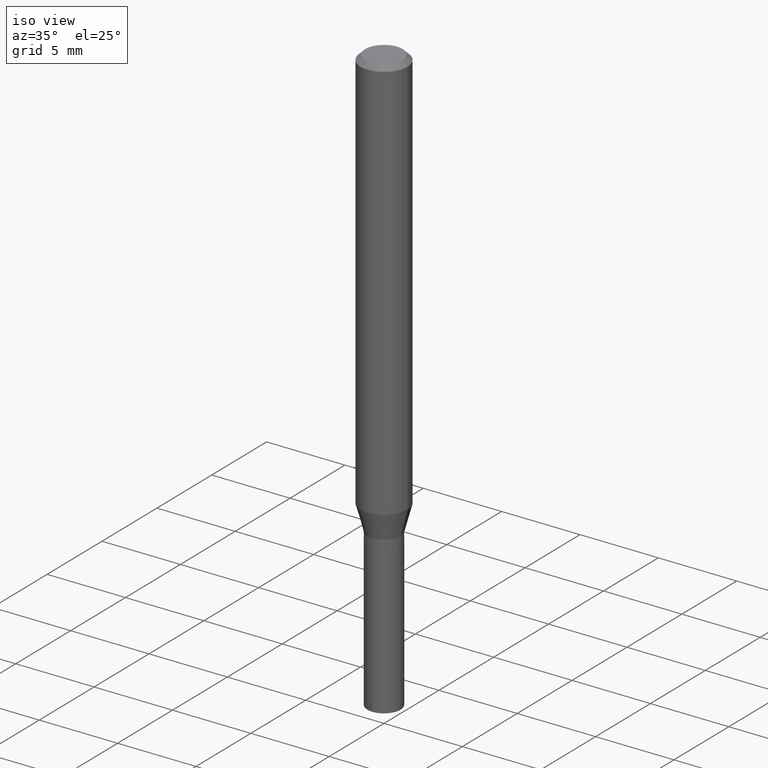
[diagram: clean part render]
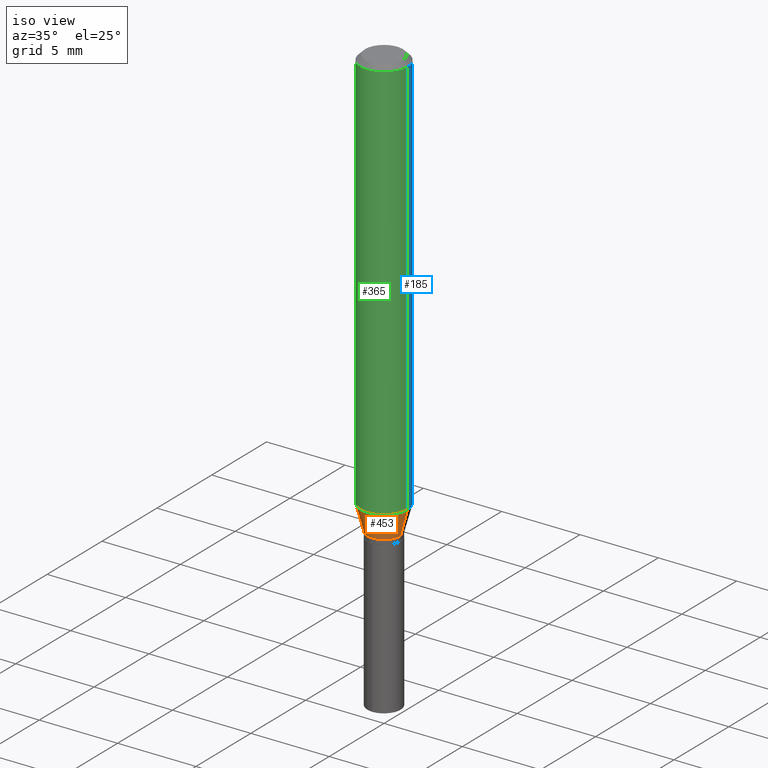
[diagram: same view with three faces highlighted in distinct colors, each labeled with its STEP entity id]
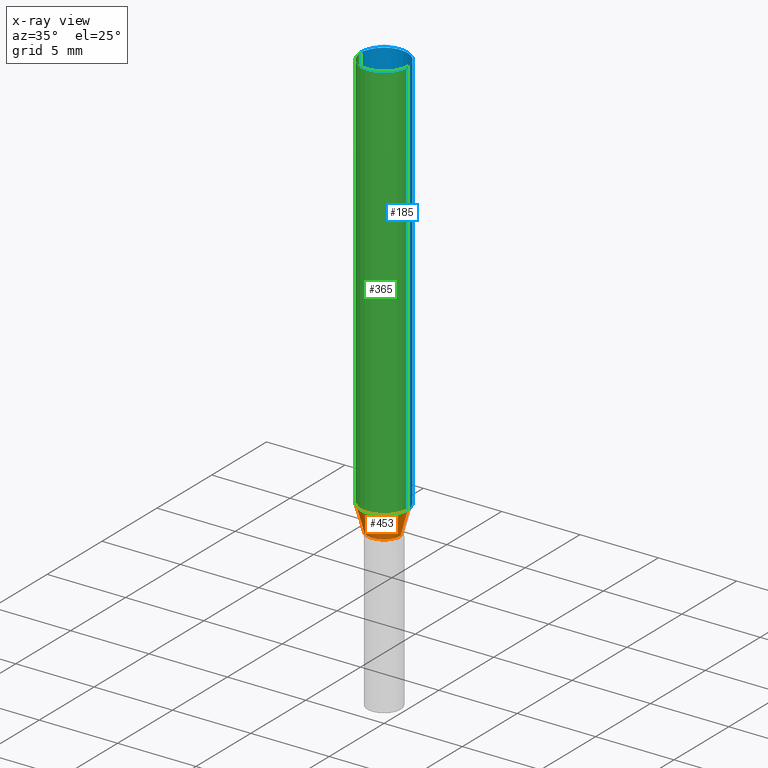
[diagram: x-ray of the same camera — body ghosted, the three highlighted faces saturated]
A machine part, iso view with three faces highlighted in distinct colors.
The next image is the same camera in x-ray (body ghosted, the three faces saturated) — at least one of them is partly hidden behind the body in this view.
Their STEP definitions:

[orange] entity #453 — the highlighted conical surface has half-angle 15 deg.
#14 = EDGE_LOOP ( 'NONE', ( #66, #106, #164, #389 ) ) ;
#15 = CARTESIAN_POINT ( 'NONE',  ( 0.04175000000000000239, -4.069321500421684169E-15, -1.081999999999999851 ) ) ;
#25 = DIRECTION ( 'NONE',  ( 1.000000000000000000, -6.982962677686269077E-15, 0.000000000000000000 ) ) ;
#40 = DIRECTION ( 'NONE',  ( 1.000000000000000000, -6.982962677686265133E-15, 0.000000000000000000 ) ) ;
#50 = CARTESIAN_POINT ( 'NONE',  ( -0.04175000000000000239, -3.481131216448440529E-15, -1.081999999999999851 ) ) ;
#51 = DIRECTION ( 'NONE',  ( 0.2588190451025213501, 1.565188264969621968E-15, 0.9659258262890682012 ) ) ;
#57 = CARTESIAN_POINT ( 'NONE',  ( 0.04175000000000000239, -4.069321500421684169E-15, -1.081999999999999851 ) ) ;
#66 = ORIENTED_EDGE ( 'NONE', *, *, #343, .F. ) ;
#79 = LINE ( 'NONE', #15, #334 ) ;
#92 = DIRECTION ( 'NONE',  ( -2.445468806185136597E-29, 3.491481338843145583E-15, 1.000000000000000000 ) ) ;
#106 = ORIENTED_EDGE ( 'NONE', *, *, #329, .T. ) ;
#112 = EDGE_CURVE ( 'NONE', #281, #201, #79, .T. ) ;
#134 = DIRECTION ( 'NONE',  ( -0.2588190451025213501, 5.211531920934551042E-15, 0.9659258262890682012 ) ) ;
#152 = EDGE_CURVE ( 'NONE', #430, #201, #416, .T. ) ;
#164 = ORIENTED_EDGE ( 'NONE', *, *, #112, .T. ) ;
#166 = AXIS2_PLACEMENT_3D ( 'NONE', #209, #286, #25 ) ;
#169 = LINE ( 'NONE', #50, #385 ) ;
#193 = CARTESIAN_POINT ( 'NONE',  ( -0.04175000000000000239, -3.502080104481499755E-15, -1.081999999999999851 ) ) ;
#201 = VERTEX_POINT ( 'NONE', #360 ) ;
#209 = CARTESIAN_POINT ( 'NONE',  ( 2.645997248292317363E-29, -3.777782808628282818E-15, -1.081999999999999851 ) ) ;
#247 = DIRECTION ( 'NONE',  ( 1.000000000000000000, -6.982962677686269077E-15, 0.000000000000000000 ) ) ;
#281 = VERTEX_POINT ( 'NONE', #57 ) ;
#286 = DIRECTION ( 'NONE',  ( -2.445468806185136597E-29, 3.491481338843145583E-15, 1.000000000000000000 ) ) ;
#311 = CARTESIAN_POINT ( 'NONE',  ( 2.645997248292317363E-29, -3.777782808628282818E-15, -1.081999999999999851 ) ) ;
#320 = AXIS2_PLACEMENT_3D ( 'NONE', #470, #347, #40 ) ;
#325 = VERTEX_POINT ( 'NONE', #193 ) ;
#329 = EDGE_CURVE ( 'NONE', #325, #281, #447, .T. ) ;
#334 = VECTOR ( 'NONE', #51, 39.37007874015747433 ) ;
#340 = CARTESIAN_POINT ( 'NONE',  ( -0.05905000000000013016, -3.132781649682767964E-15, -1.017435521029057988 ) ) ;
#343 = EDGE_CURVE ( 'NONE', #325, #430, #169, .T. ) ;
#347 = DIRECTION ( 'NONE',  ( -2.445468806185136597E-29, 3.491481338843145583E-15, 1.000000000000000000 ) ) ;
#360 = CARTESIAN_POINT ( 'NONE',  ( 0.05905000000000013016, -3.964701081266483560E-15, -1.017435521029057988 ) ) ;
#364 = FACE_OUTER_BOUND ( 'NONE', #14, .T. ) ;
#374 = CONICAL_SURFACE ( 'NONE', #166, 0.04175000000000000239, 0.2617993877991500740 ) ;
#385 = VECTOR ( 'NONE', #134, 39.37007874015747433 ) ;
#389 = ORIENTED_EDGE ( 'NONE', *, *, #152, .F. ) ;
#416 = CIRCLE ( 'NONE', #320, 0.05905000000000013016 ) ;
#430 = VERTEX_POINT ( 'NONE', #340 ) ;
#438 = AXIS2_PLACEMENT_3D ( 'NONE', #311, #92, #247 ) ;
#447 = CIRCLE ( 'NONE', #438, 0.04175000000000000239 ) ;
#453 = ADVANCED_FACE ( 'NONE', ( #364 ), #374, .T. ) ;
#470 = CARTESIAN_POINT ( 'NONE',  ( 2.488106828981282668E-29, -3.552357135149109035E-15, -1.017435521029057988 ) ) ;

[blue] entity #185 — the highlighted cylindrical surface (edge-blend (fillet) strip) has radius 1.4999 mm, axis along (-0, 0, 1).
#5 = DIRECTION ( 'NONE',  ( -2.445468806185136877E-29, 3.491481338843145188E-15, 1.000000000000000000 ) ) ;
#19 = CYLINDRICAL_SURFACE ( 'NONE', #295, 0.05905000000000006771 ) ;
#45 = LINE ( 'NONE', #428, #383 ) ;
#52 = VECTOR ( 'NONE', #275, 39.37007874015748143 ) ;
#53 = CARTESIAN_POINT ( 'NONE',  ( 0.05905000000000000526, -4.535783407291119586E-16, -0.01181000000000007565 ) ) ;
#60 = EDGE_LOOP ( 'NONE', ( #88, #156, #171, #161 ) ) ;
#83 = EDGE_CURVE ( 'NONE', #201, #431, #279, .T. ) ;
#88 = ORIENTED_EDGE ( 'NONE', *, *, #250, .T. ) ;
#95 = CARTESIAN_POINT ( 'NONE',  ( 0.000000000000000000, 0.000000000000000000, 0.000000000000000000 ) ) ;
#96 = DIRECTION ( 'NONE',  ( 1.000000000000000000, -6.982962677686268288E-15, 0.000000000000000000 ) ) ;
#120 = EDGE_CURVE ( 'NONE', #430, #351, #45, .T. ) ;
#127 = CIRCLE ( 'NONE', #411, 0.05905000000000013016 ) ;
#143 = DIRECTION ( 'NONE',  ( -2.445468806185136597E-29, 3.491481338843145583E-15, 1.000000000000000000 ) ) ;
#149 = CIRCLE ( 'NONE', #421, 0.05905000000000000526 ) ;
#156 = ORIENTED_EDGE ( 'NONE', *, *, #120, .T. ) ;
#161 = ORIENTED_EDGE ( 'NONE', *, *, #83, .F. ) ;
#171 = ORIENTED_EDGE ( 'NONE', *, *, #486, .F. ) ;
#185 = ADVANCED_FACE ( 'NONE', ( #288 ), #19, .T. ) ;
#201 = VERTEX_POINT ( 'NONE', #360 ) ;
#211 = DIRECTION ( 'NONE',  ( 1.000000000000000000, -6.982962677686266711E-15, 4.876176775795936353E-29 ) ) ;
#250 = EDGE_CURVE ( 'NONE', #201, #430, #127, .T. ) ;
#275 = DIRECTION ( 'NONE',  ( -2.445468806185136877E-29, 3.491481338843145188E-15, 1.000000000000000000 ) ) ;
#279 = LINE ( 'NONE', #306, #52 ) ;
#280 = CARTESIAN_POINT ( 'NONE',  ( -0.05905000000000000526, -1.377220279414083297E-15, -0.01181000000000007565 ) ) ;
#284 = CARTESIAN_POINT ( 'NONE',  ( 2.488106828981282668E-29, -3.552357135149109035E-15, -1.017435521029057988 ) ) ;
#288 = FACE_OUTER_BOUND ( 'NONE', #60, .T. ) ;
#292 = DIRECTION ( 'NONE',  ( -2.445468806185136597E-29, 3.491481338843145583E-15, 1.000000000000000000 ) ) ;
#295 = AXIS2_PLACEMENT_3D ( 'NONE', #95, #143, #211 ) ;
#306 = CARTESIAN_POINT ( 'NONE',  ( 0.05905000000000006771, -4.123439461173745257E-16, 2.879382386107503723E-30 ) ) ;
#340 = CARTESIAN_POINT ( 'NONE',  ( -0.05905000000000013016, -3.132781649682767964E-15, -1.017435521029057988 ) ) ;
#351 = VERTEX_POINT ( 'NONE', #280 ) ;
#354 = DIRECTION ( 'NONE',  ( -2.445468806185136597E-29, 3.491481338843145583E-15, 1.000000000000000000 ) ) ;
#360 = CARTESIAN_POINT ( 'NONE',  ( 0.05905000000000013016, -3.964701081266483560E-15, -1.017435521029057988 ) ) ;
#383 = VECTOR ( 'NONE', #5, 39.37007874015748143 ) ;
#411 = AXIS2_PLACEMENT_3D ( 'NONE', #284, #354, #477 ) ;
#421 = AXIS2_PLACEMENT_3D ( 'NONE', #479, #292, #96 ) ;
#428 = CARTESIAN_POINT ( 'NONE',  ( -0.05905000000000006771, 4.195754854663396409E-16, -2.904631170795525045E-30 ) ) ;
#430 = VERTEX_POINT ( 'NONE', #340 ) ;
#431 = VERTEX_POINT ( 'NONE', #53 ) ;
#477 = DIRECTION ( 'NONE',  ( 1.000000000000000000, -6.982962677686265133E-15, 0.000000000000000000 ) ) ;
#479 = CARTESIAN_POINT ( 'NONE',  ( 2.888098660104664642E-31, -4.123439461173780879E-17, -0.01181000000000007565 ) ) ;
#486 = EDGE_CURVE ( 'NONE', #431, #351, #149, .T. ) ;

[green] entity #365 — the highlighted cylindrical surface (edge-blend (fillet) strip) has radius 1.4999 mm, axis along (-0, 0, 1).
#5 = DIRECTION ( 'NONE',  ( -2.445468806185136877E-29, 3.491481338843145188E-15, 1.000000000000000000 ) ) ;
#40 = DIRECTION ( 'NONE',  ( 1.000000000000000000, -6.982962677686265133E-15, 0.000000000000000000 ) ) ;
#45 = LINE ( 'NONE', #428, #383 ) ;
#52 = VECTOR ( 'NONE', #275, 39.37007874015748143 ) ;
#53 = CARTESIAN_POINT ( 'NONE',  ( 0.05905000000000000526, -4.535783407291119586E-16, -0.01181000000000007565 ) ) ;
#83 = EDGE_CURVE ( 'NONE', #201, #431, #279, .T. ) ;
#91 = DIRECTION ( 'NONE',  ( -2.445468806185136597E-29, 3.491481338843145583E-15, 1.000000000000000000 ) ) ;
#101 = EDGE_CURVE ( 'NONE', #351, #431, #339, .T. ) ;
#120 = EDGE_CURVE ( 'NONE', #430, #351, #45, .T. ) ;
#124 = ORIENTED_EDGE ( 'NONE', *, *, #120, .F. ) ;
#152 = EDGE_CURVE ( 'NONE', #430, #201, #416, .T. ) ;
#182 = AXIS2_PLACEMENT_3D ( 'NONE', #432, #91, #241 ) ;
#186 = ORIENTED_EDGE ( 'NONE', *, *, #101, .F. ) ;
#200 = DIRECTION ( 'NONE',  ( 1.000000000000000000, -6.982962677686266711E-15, 4.876176775795936353E-29 ) ) ;
#201 = VERTEX_POINT ( 'NONE', #360 ) ;
#235 = FACE_OUTER_BOUND ( 'NONE', #390, .T. ) ;
#241 = DIRECTION ( 'NONE',  ( 1.000000000000000000, -6.982962677686268288E-15, 0.000000000000000000 ) ) ;
#242 = CARTESIAN_POINT ( 'NONE',  ( 0.000000000000000000, 0.000000000000000000, 0.000000000000000000 ) ) ;
#273 = AXIS2_PLACEMENT_3D ( 'NONE', #242, #396, #200 ) ;
#275 = DIRECTION ( 'NONE',  ( -2.445468806185136877E-29, 3.491481338843145188E-15, 1.000000000000000000 ) ) ;
#279 = LINE ( 'NONE', #306, #52 ) ;
#280 = CARTESIAN_POINT ( 'NONE',  ( -0.05905000000000000526, -1.377220279414083297E-15, -0.01181000000000007565 ) ) ;
#306 = CARTESIAN_POINT ( 'NONE',  ( 0.05905000000000006771, -4.123439461173745257E-16, 2.879382386107503723E-30 ) ) ;
#320 = AXIS2_PLACEMENT_3D ( 'NONE', #470, #347, #40 ) ;
#339 = CIRCLE ( 'NONE', #182, 0.05905000000000000526 ) ;
#340 = CARTESIAN_POINT ( 'NONE',  ( -0.05905000000000013016, -3.132781649682767964E-15, -1.017435521029057988 ) ) ;
#347 = DIRECTION ( 'NONE',  ( -2.445468806185136597E-29, 3.491481338843145583E-15, 1.000000000000000000 ) ) ;
#351 = VERTEX_POINT ( 'NONE', #280 ) ;
#360 = CARTESIAN_POINT ( 'NONE',  ( 0.05905000000000013016, -3.964701081266483560E-15, -1.017435521029057988 ) ) ;
#365 = ADVANCED_FACE ( 'NONE', ( #235 ), #392, .T. ) ;
#383 = VECTOR ( 'NONE', #5, 39.37007874015748143 ) ;
#390 = EDGE_LOOP ( 'NONE', ( #124, #478, #393, #186 ) ) ;
#392 = CYLINDRICAL_SURFACE ( 'NONE', #273, 0.05905000000000006771 ) ;
#393 = ORIENTED_EDGE ( 'NONE', *, *, #83, .T. ) ;
#396 = DIRECTION ( 'NONE',  ( -2.445468806185136597E-29, 3.491481338843145583E-15, 1.000000000000000000 ) ) ;
#416 = CIRCLE ( 'NONE', #320, 0.05905000000000013016 ) ;
#428 = CARTESIAN_POINT ( 'NONE',  ( -0.05905000000000006771, 4.195754854663396409E-16, -2.904631170795525045E-30 ) ) ;
#430 = VERTEX_POINT ( 'NONE', #340 ) ;
#431 = VERTEX_POINT ( 'NONE', #53 ) ;
#432 = CARTESIAN_POINT ( 'NONE',  ( 2.888098660104664642E-31, -4.123439461173780879E-17, -0.01181000000000007565 ) ) ;
#470 = CARTESIAN_POINT ( 'NONE',  ( 2.488106828981282668E-29, -3.552357135149109035E-15, -1.017435521029057988 ) ) ;
#478 = ORIENTED_EDGE ( 'NONE', *, *, #152, .T. ) ;